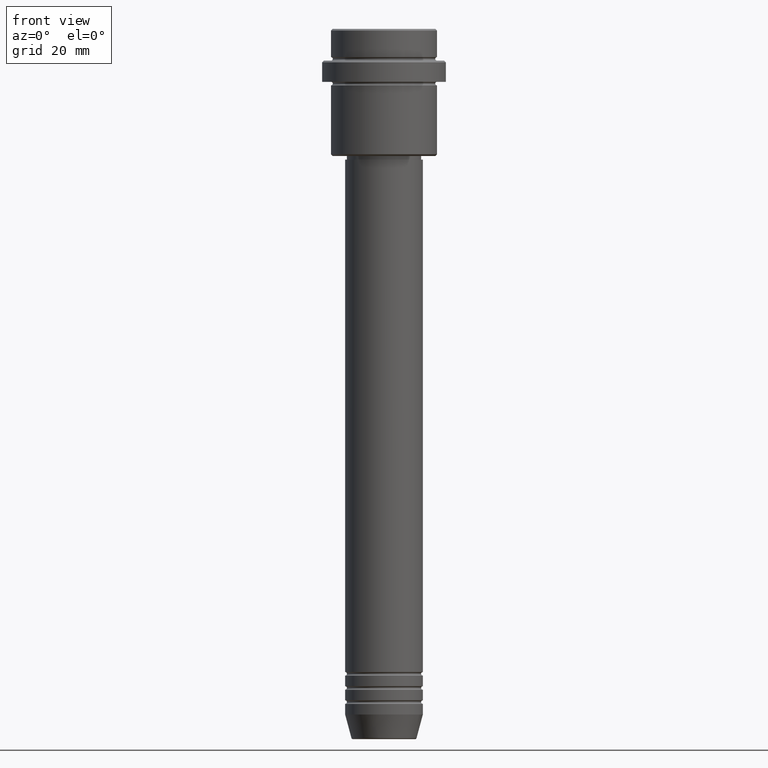
[diagram: clean part render]
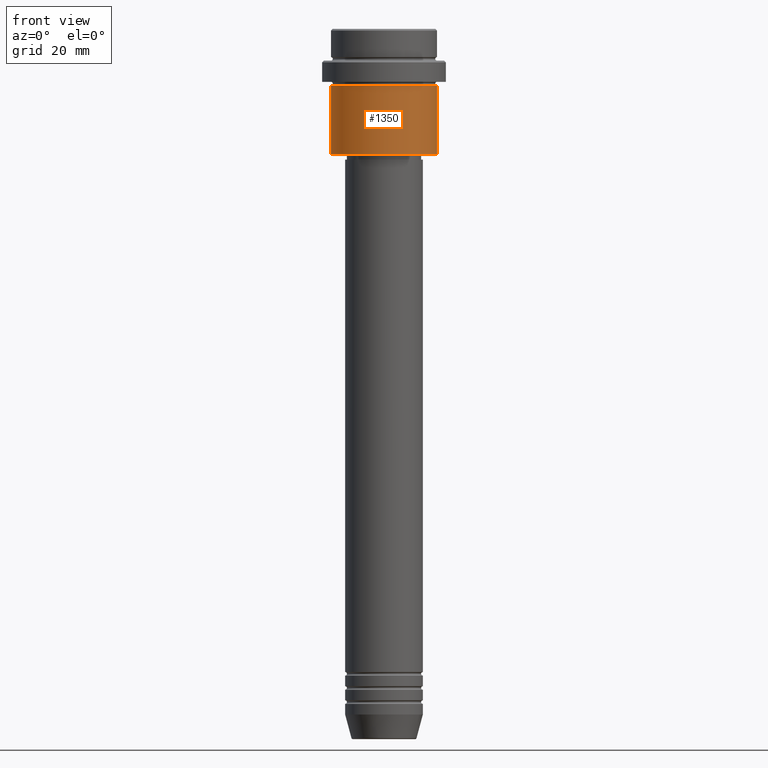
[diagram: same view with one face highlighted and labeled with its STEP entity id]
A machine part, front view. The second image highlights one B-rep face of the part: STEP entity #1350.
In plain terms, the highlighted cylindrical surface (partial cylindrical patch) has radius 15 mm, axis along (-0, -0, 1).
Its self-contained STEP definition (entity closure, byte-faithful):
#32 = VERTEX_POINT ( 'NONE', #1370 ) ;
#69 = ORIENTED_EDGE ( 'NONE', *, *, #783, .F. ) ;
#121 = AXIS2_PLACEMENT_3D ( 'NONE', #715, #1274, #502 ) ;
#152 = ORIENTED_EDGE ( 'NONE', *, *, #541, .F. ) ;
#168 = VERTEX_POINT ( 'NONE', #420 ) ;
#170 = DIRECTION ( 'NONE',  ( -0.000000000000000000, -0.000000000000000000, 1.000000000000000000 ) ) ;
#172 = AXIS2_PLACEMENT_3D ( 'NONE', #1147, #170, #1264 ) ;
#174 = AXIS2_PLACEMENT_3D ( 'NONE', #272, #695, #1137 ) ;
#189 = CIRCLE ( 'NONE', #121, 15.00000000000000178 ) ;
#216 = VERTEX_POINT ( 'NONE', #649 ) ;
#219 = ORIENTED_EDGE ( 'NONE', *, *, #953, .T. ) ;
#250 = CARTESIAN_POINT ( 'NONE',  ( -15.00000000000000000, 1.836970198721029589E-15, 0.000000000000000000 ) ) ;
#272 = CARTESIAN_POINT ( 'NONE',  ( 0.000000000000000000, 0.000000000000000000, 0.000000000000000000 ) ) ;
#420 = CARTESIAN_POINT ( 'NONE',  ( -15.00000000000000355, 1.836970198721029983E-15, -16.00000000000000000 ) ) ;
#431 = LINE ( 'NONE', #1085, #685 ) ;
#502 = DIRECTION ( 'NONE',  ( 1.000000000000000000, 0.000000000000000000, 0.000000000000000000 ) ) ;
#541 = EDGE_CURVE ( 'NONE', #168, #899, #189, .T. ) ;
#640 = VECTOR ( 'NONE', #1227, 1000.000000000000000 ) ;
#643 = EDGE_CURVE ( 'NONE', #216, #899, #431, .T. ) ;
#649 = CARTESIAN_POINT ( 'NONE',  ( 15.00000000000000000, 0.000000000000000000, -35.50000000000004263 ) ) ;
#685 = VECTOR ( 'NONE', #872, 1000.000000000000000 ) ;
#695 = DIRECTION ( 'NONE',  ( -0.000000000000000000, -0.000000000000000000, 1.000000000000000000 ) ) ;
#715 = CARTESIAN_POINT ( 'NONE',  ( 0.000000000000000000, 0.000000000000000000, -16.00000000000000000 ) ) ;
#754 = CIRCLE ( 'NONE', #172, 15.00000000000000000 ) ;
#757 = EDGE_LOOP ( 'NONE', ( #69, #219, #964, #152 ) ) ;
#783 = EDGE_CURVE ( 'NONE', #32, #168, #786, .T. ) ;
#786 = LINE ( 'NONE', #250, #640 ) ;
#812 = FACE_OUTER_BOUND ( 'NONE', #757, .T. ) ;
#872 = DIRECTION ( 'NONE',  ( -0.000000000000000000, -0.000000000000000000, 1.000000000000000000 ) ) ;
#899 = VERTEX_POINT ( 'NONE', #918 ) ;
#918 = CARTESIAN_POINT ( 'NONE',  ( 15.00000000000000178, 0.000000000000000000, -16.00000000000000000 ) ) ;
#953 = EDGE_CURVE ( 'NONE', #32, #216, #754, .T. ) ;
#964 = ORIENTED_EDGE ( 'NONE', *, *, #643, .T. ) ;
#1085 = CARTESIAN_POINT ( 'NONE',  ( 15.00000000000000000, 0.000000000000000000, 0.000000000000000000 ) ) ;
#1137 = DIRECTION ( 'NONE',  ( 1.000000000000000000, 0.000000000000000000, 0.000000000000000000 ) ) ;
#1147 = CARTESIAN_POINT ( 'NONE',  ( 0.000000000000000000, 0.000000000000000000, -35.50000000000004263 ) ) ;
#1227 = DIRECTION ( 'NONE',  ( -0.000000000000000000, -0.000000000000000000, 1.000000000000000000 ) ) ;
#1248 = CYLINDRICAL_SURFACE ( 'NONE', #174, 15.00000000000000000 ) ;
#1264 = DIRECTION ( 'NONE',  ( -1.000000000000000000, 0.000000000000000000, 0.000000000000000000 ) ) ;
#1274 = DIRECTION ( 'NONE',  ( -0.000000000000000000, -0.000000000000000000, 1.000000000000000000 ) ) ;
#1350 = ADVANCED_FACE ( 'NONE', ( #812 ), #1248, .T. ) ;
#1370 = CARTESIAN_POINT ( 'NONE',  ( -15.00000000000000000, 1.836970198721029589E-15, -35.50000000000004263 ) ) ;